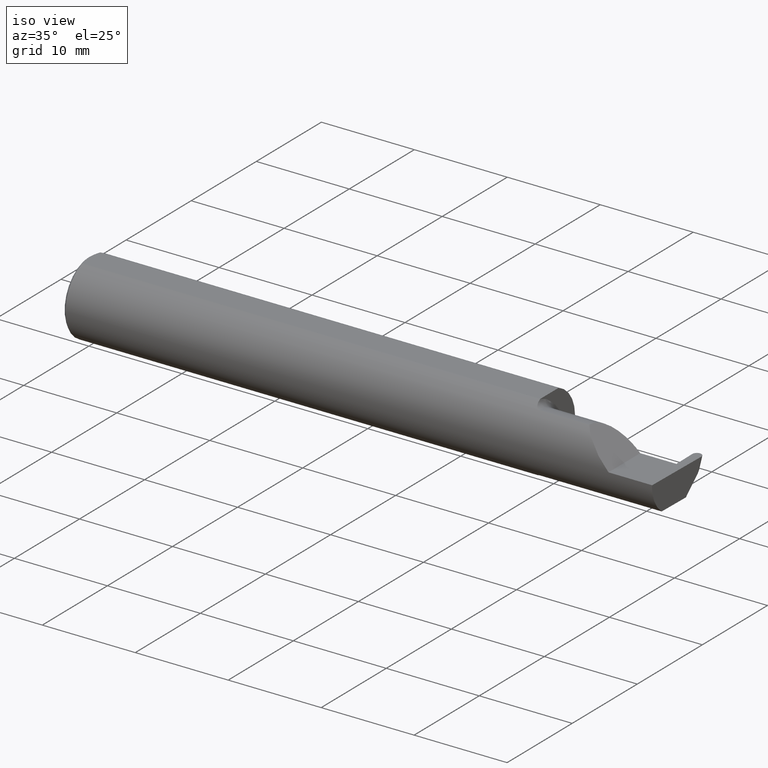
[diagram: clean part render]
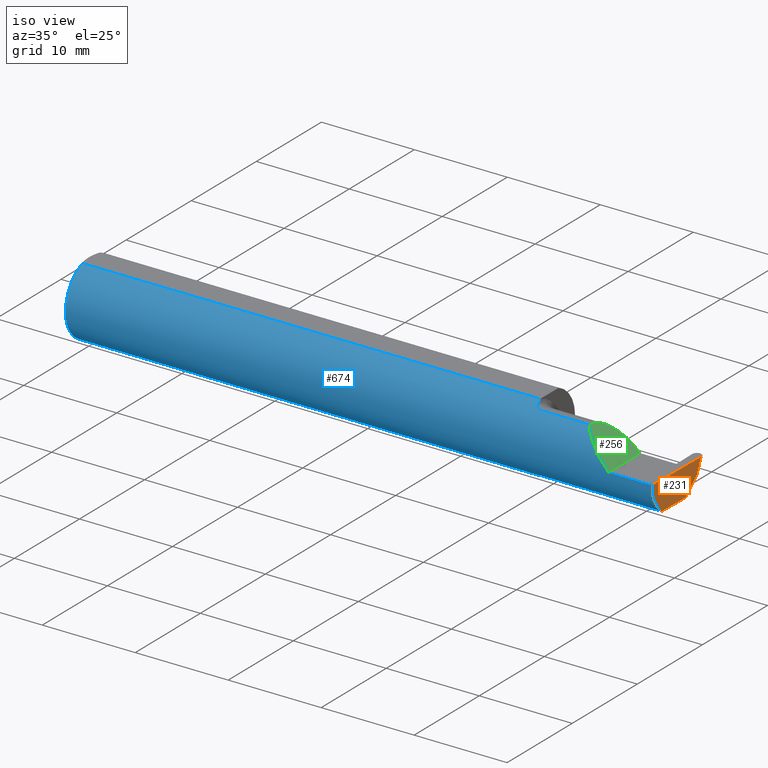
[diagram: same view with three faces highlighted in distinct colors, each labeled with its STEP entity id]
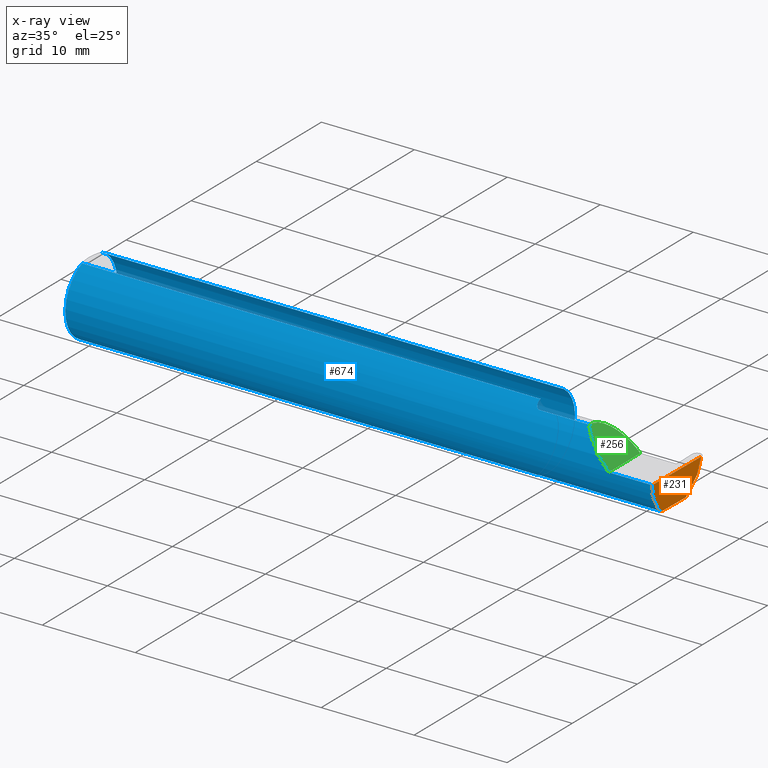
[diagram: x-ray of the same camera — body ghosted, the three highlighted faces saturated]
A machine part, iso view with three faces highlighted in distinct colors.
The next image is the same camera in x-ray (body ghosted, the three faces saturated) — at least one of them is partly hidden behind the body in this view.
Their STEP definitions:

[orange] entity #231 — the highlighted planar face has unit normal (-0.9992, 0.0174, 0.0349).
#2 = CARTESIAN_POINT ( 'NONE',  ( 2.499981158297549744, 0.1333832200032812054, 0.000000000000000000 ) ) ;
#18 = VECTOR ( 'NONE', #250, 39.37007874015748143 ) ;
#33 = DIRECTION ( 'NONE',  ( 0.03867711768363010783, 0.3253245514560481610, 0.9448111011136606230 ) ) ;
#41 = AXIS2_PLACEMENT_3D ( 'NONE', #562, #195, #354 ) ;
#42 = ORIENTED_EDGE ( 'NONE', *, *, #466, .F. ) ;
#49 = EDGE_CURVE ( 'NONE', #323, #434, #563, .T. ) ;
#61 = CARTESIAN_POINT ( 'NONE',  ( 2.491731938133923130, -0.08909999999999977660, -0.1250000000000000278 ) ) ;
#62 = ORIENTED_EDGE ( 'NONE', *, *, #202, .T. ) ;
#73 = CARTESIAN_POINT ( 'NONE',  ( 2.497431183685123735, 0.1119346375676058408, -0.06229120642041485051 ) ) ;
#94 = CARTESIAN_POINT ( 'NONE',  ( 2.493178846255211134, -0.1561000000000000165, -0.05008759057876781967 ) ) ;
#103 = CARTESIAN_POINT ( 'NONE',  ( 2.499997065210553426, 0.1342945264389270033, 0.000000000000000000 ) ) ;
#107 = LINE ( 'NONE', #697, #371 ) ;
#146 = VERTEX_POINT ( 'NONE', #73 ) ;
#151 = CARTESIAN_POINT ( 'NONE',  ( 2.491656083944432165, -0.09360841750841739084, -0.1249186702281520622 ) ) ;
#157 = CARTESIAN_POINT ( 'NONE',  ( 2.491656083944432165, -0.09360841750841739084, -0.1249186702281520622 ) ) ;
#158 = VERTEX_POINT ( 'NONE', #2 ) ;
#161 = VERTEX_POINT ( 'NONE', #346 ) ;
#163 = EDGE_LOOP ( 'NONE', ( #42, #62, #644, #421, #251, #595 ) ) ;
#165 = CARTESIAN_POINT ( 'NONE',  ( 2.491731938133923130, -0.08909999999999977660, -0.1250000000000000278 ) ) ;
#172 = CARTESIAN_POINT ( 'NONE',  ( 2.491680411974855680, -0.09210618219364760662, -0.1249728871357008442 ) ) ;
#185 = CARTESIAN_POINT ( 'NONE',  ( 2.491656083944432165, -0.09360841750841739084, -0.1249186702281520622 ) ) ;
#190 = EDGE_CURVE ( 'NONE', #161, #434, #505, .T. ) ;
#195 = DIRECTION ( 'NONE',  ( -0.9992386149554827179, 0.01744177490282277851, 0.03489949670250104552 ) ) ;
#198 = PLANE ( 'NONE',  #41 ) ;
#202 = EDGE_CURVE ( 'NONE', #146, #158, #406, .T. ) ;
#231 = ADVANCED_FACE ( 'NONE', ( #670 ), #198, .F. ) ;
#250 = DIRECTION ( 'NONE',  ( -0.01745240643727612520, -0.9998476951563912696, 0.000000000000000000 ) ) ;
#251 = ORIENTED_EDGE ( 'NONE', *, *, #49, .T. ) ;
#319 = EDGE_CURVE ( 'NONE', #158, #489, #478, .T. ) ;
#323 = VERTEX_POINT ( 'NONE', #151 ) ;
#346 = CARTESIAN_POINT ( 'NONE',  ( 2.494146424721983557, 0.04922584398802135747, -0.1250000000000000278 ) ) ;
#354 = DIRECTION ( 'NONE',  ( 0.03490480639812536257, 0.000000000000000000, 0.9993906415863165194 ) ) ;
#364 = CARTESIAN_POINT ( 'NONE',  ( 2.492005481760536156, -0.1336908980339253650, -0.09488266708345013956 ) ) ;
#368 = CARTESIAN_POINT ( 'NONE',  ( 2.494928209896765114, -0.1560999999999999888, 0.000000000000000000 ) ) ;
#371 = VECTOR ( 'NONE', #411, 39.37007874015748854 ) ;
#374 = EDGE_CURVE ( 'NONE', #323, #489, #612, .T. ) ;
#397 = VECTOR ( 'NONE', #692, 39.37007874015748143 ) ;
#406 = LINE ( 'NONE', #679, #590 ) ;
#411 = DIRECTION ( 'NONE',  ( -0.03701368837992422695, -0.7066222423871549863, -0.7066222423871629799 ) ) ;
#421 = ORIENTED_EDGE ( 'NONE', *, *, #374, .F. ) ;
#434 = VERTEX_POINT ( 'NONE', #165 ) ;
#451 = CARTESIAN_POINT ( 'NONE',  ( 2.491792233050964533, -0.08564570651617026131, -0.1250000000000000278 ) ) ;
#466 = EDGE_CURVE ( 'NONE', #146, #161, #107, .T. ) ;
#478 = LINE ( 'NONE', #103, #397 ) ;
#489 = VERTEX_POINT ( 'NONE', #647 ) ;
#505 = LINE ( 'NONE', #451, #18 ) ;
#562 = CARTESIAN_POINT ( 'NONE',  ( 2.499997065210553426, 0.1342945264389270033, 0.000000000000000000 ) ) ;
#563 =( BOUNDED_CURVE ( )  B_SPLINE_CURVE ( 3, ( #185, #172, #594, #61 ),
 .UNSPECIFIED., .F., .F. ) 
 B_SPLINE_CURVE_WITH_KNOTS ( ( 4, 4 ),
 ( 0.4273896528388664295, 0.4634648172053312254 ),
 .UNSPECIFIED. ) 
 CURVE ( )  GEOMETRIC_REPRESENTATION_ITEM ( )  RATIONAL_B_SPLINE_CURVE ( ( 1.000000000000000000, 0.9998915514833921492, 0.9998915514833921492, 1.000000000000000000 ) ) 
 REPRESENTATION_ITEM ( '' )  );
#590 = VECTOR ( 'NONE', #33, 39.37007874015748143 ) ;
#594 = CARTESIAN_POINT ( 'NONE',  ( 2.491705699447075428, -0.09060321336276816462, -0.1250000000000000833 ) ) ;
#595 = ORIENTED_EDGE ( 'NONE', *, *, #190, .F. ) ;
#612 =( BOUNDED_CURVE ( )  B_SPLINE_CURVE ( 3, ( #157, #364, #94, #368 ),
 .UNSPECIFIED., .F., .F. ) 
 B_SPLINE_CURVE_WITH_KNOTS ( ( 4, 4 ),
 ( 0.1796232990704036969, 1.107331509589568608 ),
 .UNSPECIFIED. ) 
 CURVE ( )  GEOMETRIC_REPRESENTATION_ITEM ( )  RATIONAL_B_SPLINE_CURVE ( ( 1.000000000000000000, 0.9295565493311497285, 0.9295565493311497285, 1.000000000000000000 ) ) 
 REPRESENTATION_ITEM ( '' )  );
#644 = ORIENTED_EDGE ( 'NONE', *, *, #319, .T. ) ;
#647 = CARTESIAN_POINT ( 'NONE',  ( 2.494928209896765114, -0.1560999999999999888, 0.000000000000000000 ) ) ;
#670 = FACE_OUTER_BOUND ( 'NONE', #163, .T. ) ;
#679 = CARTESIAN_POINT ( 'NONE',  ( 2.499992648711913734, 0.1334798692399048747, 0.0002806897643215264617 ) ) ;
#692 = DIRECTION ( 'NONE',  ( -0.01745240643727612520, -0.9998476951563912696, 0.000000000000000000 ) ) ;
#697 = CARTESIAN_POINT ( 'NONE',  ( 2.495646440191340965, 0.07786239281539021617, -0.09636345117263085680 ) ) ;

[blue] entity #674 — the highlighted cylindrical surface (partial cylindrical patch) has radius 3.9649 mm, axis along (-1, -0, -0).
#6 = DIRECTION ( 'NONE',  ( 1.000000000000000000, 3.338285537973413126E-17, 0.000000000000000000 ) ) ;
#7 = EDGE_LOOP ( 'NONE', ( #551, #415, #269, #609, #233, #183, #317, #541, #409, #169, #92, #469, #650 ) ) ;
#14 = EDGE_CURVE ( 'NONE', #554, #55, #150, .T. ) ;
#24 = DIRECTION ( 'NONE',  ( 1.000000000000000000, 0.000000000000000000, 0.000000000000000000 ) ) ;
#50 = DIRECTION ( 'NONE',  ( -1.000000000000000000, -0.000000000000000000, -0.000000000000000000 ) ) ;
#55 = VERTEX_POINT ( 'NONE', #277 ) ;
#70 = EDGE_CURVE ( 'NONE', #175, #699, #392, .T. ) ;
#72 = EDGE_CURVE ( 'NONE', #356, #175, #515, .T. ) ;
#78 = AXIS2_PLACEMENT_3D ( 'NONE', #391, #388, #443 ) ;
#79 = EDGE_CURVE ( 'NONE', #489, #402, #226, .T. ) ;
#83 = CARTESIAN_POINT ( 'NONE',  ( 1.949999999999999956, -0.05502817059483720852, 0.1460791239054557156 ) ) ;
#86 = VECTOR ( 'NONE', #50, 39.37007874015748143 ) ;
#90 = CARTESIAN_POINT ( 'NONE',  ( 0.000000000000000000, 0.05497272050753933964, 0.1460999999999998689 ) ) ;
#92 = ORIENTED_EDGE ( 'NONE', *, *, #321, .F. ) ;
#94 = CARTESIAN_POINT ( 'NONE',  ( 2.493178846255211134, -0.1561000000000000165, -0.05008759057876781967 ) ) ;
#95 = CARTESIAN_POINT ( 'NONE',  ( 1.974999999999999867, -0.09360841750841737696, -0.1249186702281520900 ) ) ;
#109 = VERTEX_POINT ( 'NONE', #337 ) ;
#111 = DIRECTION ( 'NONE',  ( -1.000000000000000000, -3.338285537973413126E-17, -0.000000000000000000 ) ) ;
#112 = CARTESIAN_POINT ( 'NONE',  ( 3.749399456654646757E-32, -0.1560999999999999333, 3.061616997868383634E-16 ) ) ;
#129 = CARTESIAN_POINT ( 'NONE',  ( 1.956968222952011338, -0.08292257577194368789, 0.1323215906886382742 ) ) ;
#131 = CARTESIAN_POINT ( 'NONE',  ( 0.000000000000000000, 0.000000000000000000, 0.000000000000000000 ) ) ;
#150 = B_SPLINE_CURVE_WITH_KNOTS ( 'NONE', 3,
 ( #95, #575, #311, #479, #687, #473, #477, #210, #690, #369 ),
 .UNSPECIFIED., .F., .F.,
 ( 4, 2, 2, 2, 4 ),
 ( 1.958690481381664333E-07, 0.0003511029445248158368, 0.0007020100200014934991, 0.001052917095478171161, 0.001403824170954848715 ),
 .UNSPECIFIED. ) ;
#151 = CARTESIAN_POINT ( 'NONE',  ( 2.491656083944432165, -0.09360841750841739084, -0.1249186702281520622 ) ) ;
#157 = CARTESIAN_POINT ( 'NONE',  ( 2.491656083944432165, -0.09360841750841739084, -0.1249186702281520622 ) ) ;
#162 = CIRCLE ( 'NONE', #424, 0.1560999999999999888 ) ;
#169 = ORIENTED_EDGE ( 'NONE', *, *, #693, .T. ) ;
#171 = CARTESIAN_POINT ( 'NONE',  ( 2.310000000000000053, -0.1560999999999999888, 2.326828918379970872E-17 ) ) ;
#175 = VERTEX_POINT ( 'NONE', #83 ) ;
#176 = CARTESIAN_POINT ( 'NONE',  ( 1.974999999999999867, -0.09360841750841737696, -0.1249186702281520900 ) ) ;
#183 = ORIENTED_EDGE ( 'NONE', *, *, #70, .F. ) ;
#184 = CARTESIAN_POINT ( 'NONE',  ( 1.949999999999999956, 0.000000000000000000, 0.000000000000000000 ) ) ;
#187 = VERTEX_POINT ( 'NONE', #288 ) ;
#193 = CYLINDRICAL_SURFACE ( 'NONE', #471, 0.1560999999999999888 ) ;
#194 = DIRECTION ( 'NONE',  ( -1.000000000000000000, -0.000000000000000000, -0.000000000000000000 ) ) ;
#196 = CIRCLE ( 'NONE', #675, 0.1560999999999999888 ) ;
#205 = VERTEX_POINT ( 'NONE', #294 ) ;
#210 = CARTESIAN_POINT ( 'NONE',  ( 1.950382848617946419, -0.06353102748571687330, -0.1426585117573466732 ) ) ;
#215 = CARTESIAN_POINT ( 'NONE',  ( 0.01000000000000013205, 0.000000000000000000, -0.1560999999999999888 ) ) ;
#222 = DIRECTION ( 'NONE',  ( 0.000000000000000000, 1.000000000000000000, 0.000000000000000000 ) ) ;
#223 = CARTESIAN_POINT ( 'NONE',  ( 1.965961110143898516, -0.09166971356555039807, 0.1263901893006928734 ) ) ;
#225 = CARTESIAN_POINT ( 'NONE',  ( 2.215117332916549220, -0.1336908980339253650, 0.09488266708345012568 ) ) ;
#226 = LINE ( 'NONE', #112, #526 ) ;
#228 = VECTOR ( 'NONE', #564, 39.37007874015748143 ) ;
#230 = LINE ( 'NONE', #556, #228 ) ;
#233 = ORIENTED_EDGE ( 'NONE', *, *, #642, .F. ) ;
#253 = VERTEX_POINT ( 'NONE', #568 ) ;
#269 = ORIENTED_EDGE ( 'NONE', *, *, #79, .T. ) ;
#276 = CARTESIAN_POINT ( 'NONE',  ( 2.218230820000000048, -0.09360841750841740472, -0.1249186702281520622 ) ) ;
#277 = CARTESIAN_POINT ( 'NONE',  ( 1.949999999999999956, -0.05502817059483720852, -0.1460791239054557156 ) ) ;
#282 = DIRECTION ( 'NONE',  ( 1.000000000000000000, 0.000000000000000000, 0.000000000000000000 ) ) ;
#283 = CARTESIAN_POINT ( 'NONE',  ( 1.949999999999999956, -0.05502817059483720852, 0.1460791239054557156 ) ) ;
#288 = CARTESIAN_POINT ( 'NONE',  ( 0.01000000000000013205, 0.05497272050753933964, 0.1460999999999998689 ) ) ;
#291 = VECTOR ( 'NONE', #111, 39.37007874015748143 ) ;
#294 = CARTESIAN_POINT ( 'NONE',  ( 2.185081329771846992, -0.09360841750841744635, 0.1249186702281520622 ) ) ;
#311 = CARTESIAN_POINT ( 'NONE',  ( 1.965963332554100829, -0.09167217634395835590, -0.1263885352504912074 ) ) ;
#313 = CARTESIAN_POINT ( 'NONE',  ( 2.310000000000000053, -0.1560999999999999888, 2.326828918379970872E-17 ) ) ;
#317 = ORIENTED_EDGE ( 'NONE', *, *, #72, .F. ) ;
#321 = EDGE_CURVE ( 'NONE', #109, #187, #528, .T. ) ;
#323 = VERTEX_POINT ( 'NONE', #151 ) ;
#325 = CARTESIAN_POINT ( 'NONE',  ( 2.259912409421231949, -0.1560999999999999333, 0.05008759057876778498 ) ) ;
#326 = AXIS2_PLACEMENT_3D ( 'NONE', #440, #6, #334 ) ;
#327 = CARTESIAN_POINT ( 'NONE',  ( 1.952022937423427251, -0.07166099912599845079, 0.1387519908707177951 ) ) ;
#333 = CARTESIAN_POINT ( 'NONE',  ( 0.000000000000000000, -0.05497272050753933964, 0.1460999999999998689 ) ) ;
#334 = DIRECTION ( 'NONE',  ( 0.000000000000000000, 1.000000000000000000, 0.000000000000000000 ) ) ;
#335 = VERTEX_POINT ( 'NONE', #215 ) ;
#337 = CARTESIAN_POINT ( 'NONE',  ( 1.949999999999999956, 0.05497272050753933964, 0.1460999999999998689 ) ) ;
#356 = VERTEX_POINT ( 'NONE', #682 ) ;
#357 = CARTESIAN_POINT ( 'NONE',  ( 0.01000000000000013205, 0.000000000000000000, 0.000000000000000000 ) ) ;
#364 = CARTESIAN_POINT ( 'NONE',  ( 2.492005481760536156, -0.1336908980339253650, -0.09488266708345013956 ) ) ;
#368 = CARTESIAN_POINT ( 'NONE',  ( 2.494928209896765114, -0.1560999999999999888, 0.000000000000000000 ) ) ;
#369 = CARTESIAN_POINT ( 'NONE',  ( 1.949999999999999956, -0.05502817059483720852, -0.1460791239054557156 ) ) ;
#374 = EDGE_CURVE ( 'NONE', #323, #489, #612, .T. ) ;
#385 = CIRCLE ( 'NONE', #78, 0.1560999999999999888 ) ;
#388 = DIRECTION ( 'NONE',  ( 1.000000000000000000, 0.000000000000000000, 0.000000000000000000 ) ) ;
#391 = CARTESIAN_POINT ( 'NONE',  ( 0.01000000000000013205, 0.000000000000000000, 0.000000000000000000 ) ) ;
#392 = B_SPLINE_CURVE_WITH_KNOTS ( 'NONE', 3,
 ( #283, #501, #605, #327, #487, #129, #396, #223, #492, #656 ),
 .UNSPECIFIED., .F., .F.,
 ( 4, 2, 2, 2, 4 ),
 ( 2.042507625474130879E-06, 0.0003500235523914536299, 0.0006980045971574332098, 0.001045985641923413223, 0.001393966686689393454 ),
 .UNSPECIFIED. ) ;
#396 = CARTESIAN_POINT ( 'NONE',  ( 1.959397142708819928, -0.08631844651567573135, 0.1301035823018546200 ) ) ;
#402 = VERTEX_POINT ( 'NONE', #313 ) ;
#409 = ORIENTED_EDGE ( 'NONE', *, *, #567, .T. ) ;
#415 = ORIENTED_EDGE ( 'NONE', *, *, #374, .T. ) ;
#424 = AXIS2_PLACEMENT_3D ( 'NONE', #357, #24, #672 ) ;
#433 = DIRECTION ( 'NONE',  ( -1.000000000000000000, -0.000000000000000000, -0.000000000000000000 ) ) ;
#440 = CARTESIAN_POINT ( 'NONE',  ( 1.949999999999999956, 0.000000000000000000, 0.000000000000000000 ) ) ;
#443 = DIRECTION ( 'NONE',  ( 0.000000000000000000, 0.000000000000000000, -1.000000000000000000 ) ) ;
#456 = FACE_OUTER_BOUND ( 'NONE', #7, .T. ) ;
#469 = ORIENTED_EDGE ( 'NONE', *, *, #619, .F. ) ;
#471 = AXIS2_PLACEMENT_3D ( 'NONE', #131, #194, #503 ) ;
#473 = CARTESIAN_POINT ( 'NONE',  ( 1.953298581922915833, -0.07564908586346466568, -0.1366096273808739270 ) ) ;
#474 = EDGE_CURVE ( 'NONE', #253, #356, #623, .T. ) ;
#477 = CARTESIAN_POINT ( 'NONE',  ( 1.952026367118634864, -0.07167964287766660780, -0.1387431844349195642 ) ) ;
#479 = CARTESIAN_POINT ( 'NONE',  ( 1.959390565699349773, -0.08631243322371083548, -0.1301077001157307234 ) ) ;
#483 = DIRECTION ( 'NONE',  ( 1.000000000000000000, 3.338285537973413126E-17, 0.000000000000000000 ) ) ;
#487 = CARTESIAN_POINT ( 'NONE',  ( 1.953286672421925330, -0.07562367844220796442, 0.1366243616413076456 ) ) ;
#489 = VERTEX_POINT ( 'NONE', #647 ) ;
#492 = CARTESIAN_POINT ( 'NONE',  ( 1.970302566751078510, -0.09360841750841732145, 0.1249186702281521177 ) ) ;
#495 = CARTESIAN_POINT ( 'NONE',  ( 2.185081329771846992, -0.09360841750841744635, 0.1249186702281520622 ) ) ;
#500 = LINE ( 'NONE', #276, #291 ) ;
#501 = CARTESIAN_POINT ( 'NONE',  ( 1.950000000000000400, -0.05936499800629317647, 0.1444454361322978220 ) ) ;
#503 = DIRECTION ( 'NONE',  ( 0.000000000000000000, 0.000000000000000000, 1.000000000000000000 ) ) ;
#504 = EDGE_CURVE ( 'NONE', #402, #205, #654, .T. ) ;
#515 = CIRCLE ( 'NONE', #326, 0.1560999999999999888 ) ;
#526 = VECTOR ( 'NONE', #433, 39.37007874015748143 ) ;
#528 = LINE ( 'NONE', #90, #86 ) ;
#541 = ORIENTED_EDGE ( 'NONE', *, *, #474, .F. ) ;
#549 = VECTOR ( 'NONE', #282, 39.37007874015748143 ) ;
#551 = ORIENTED_EDGE ( 'NONE', *, *, #586, .F. ) ;
#554 = VERTEX_POINT ( 'NONE', #176 ) ;
#556 = CARTESIAN_POINT ( 'NONE',  ( 2.218230820000000048, -0.09360841750841740472, 0.1249186702281520622 ) ) ;
#564 = DIRECTION ( 'NONE',  ( 1.000000000000000000, 3.338285537973413126E-17, 0.000000000000000000 ) ) ;
#567 = EDGE_CURVE ( 'NONE', #253, #335, #385, .T. ) ;
#568 = CARTESIAN_POINT ( 'NONE',  ( 0.01000000000000013205, -0.05497272050753933964, 0.1460999999999998689 ) ) ;
#575 = CARTESIAN_POINT ( 'NONE',  ( 1.970298065053172731, -0.09360841750841740472, -0.1249186702281521039 ) ) ;
#586 = EDGE_CURVE ( 'NONE', #323, #554, #500, .T. ) ;
#605 = CARTESIAN_POINT ( 'NONE',  ( 1.950388004276692122, -0.06355822688702683632, 0.1426455942582921244 ) ) ;
#607 = CARTESIAN_POINT ( 'NONE',  ( 1.974999999999999867, -0.09360841750841737696, 0.1249186702281520900 ) ) ;
#609 = ORIENTED_EDGE ( 'NONE', *, *, #504, .T. ) ;
#612 =( BOUNDED_CURVE ( )  B_SPLINE_CURVE ( 3, ( #157, #364, #94, #368 ),
 .UNSPECIFIED., .F., .F. ) 
 B_SPLINE_CURVE_WITH_KNOTS ( ( 4, 4 ),
 ( 0.1796232990704036969, 1.107331509589568608 ),
 .UNSPECIFIED. ) 
 CURVE ( )  GEOMETRIC_REPRESENTATION_ITEM ( )  RATIONAL_B_SPLINE_CURVE ( ( 1.000000000000000000, 0.9295565493311497285, 0.9295565493311497285, 1.000000000000000000 ) ) 
 REPRESENTATION_ITEM ( '' )  );
#619 = EDGE_CURVE ( 'NONE', #55, #109, #196, .T. ) ;
#623 = LINE ( 'NONE', #333, #549 ) ;
#642 = EDGE_CURVE ( 'NONE', #699, #205, #230, .T. ) ;
#647 = CARTESIAN_POINT ( 'NONE',  ( 2.494928209896765114, -0.1560999999999999888, 0.000000000000000000 ) ) ;
#650 = ORIENTED_EDGE ( 'NONE', *, *, #14, .F. ) ;
#654 =( BOUNDED_CURVE ( )  B_SPLINE_CURVE ( 3, ( #171, #325, #225, #495 ),
 .UNSPECIFIED., .F., .F. ) 
 B_SPLINE_CURVE_WITH_KNOTS ( ( 4, 4 ),
 ( 4.712388980384689674, 5.640097190903854418 ),
 .UNSPECIFIED. ) 
 CURVE ( )  GEOMETRIC_REPRESENTATION_ITEM ( )  RATIONAL_B_SPLINE_CURVE ( ( 1.000000000000000000, 0.9295565493311498395, 0.9295565493311498395, 1.000000000000000000 ) ) 
 REPRESENTATION_ITEM ( '' )  );
#656 = CARTESIAN_POINT ( 'NONE',  ( 1.974999999999999867, -0.09360841750841737696, 0.1249186702281520900 ) ) ;
#672 = DIRECTION ( 'NONE',  ( 0.000000000000000000, 0.000000000000000000, -1.000000000000000000 ) ) ;
#674 = ADVANCED_FACE ( 'NONE', ( #456 ), #193, .T. ) ;
#675 = AXIS2_PLACEMENT_3D ( 'NONE', #184, #483, #222 ) ;
#682 = CARTESIAN_POINT ( 'NONE',  ( 1.949999999999999956, -0.05497272050753934658, 0.1460999999999998689 ) ) ;
#687 = CARTESIAN_POINT ( 'NONE',  ( 1.956963077135974505, -0.08291057444783007935, -0.1323284214741863585 ) ) ;
#690 = CARTESIAN_POINT ( 'NONE',  ( 1.949999999999998401, -0.05933838711026689222, -0.1444554604868197034 ) ) ;
#693 = EDGE_CURVE ( 'NONE', #335, #187, #162, .T. ) ;
#699 = VERTEX_POINT ( 'NONE', #607 ) ;

[green] entity #256 — the highlighted planar face has unit normal (-0.7071, 0, -0.7071).
#10 = ORIENTED_EDGE ( 'NONE', *, *, #641, .T. ) ;
#28 = AXIS2_PLACEMENT_3D ( 'NONE', #557, #141, #620 ) ;
#140 = VECTOR ( 'NONE', #603, 39.37007874015748143 ) ;
#141 = DIRECTION ( 'NONE',  ( -0.7071067811865436870, 0.000000000000000000, -0.7071067811865513475 ) ) ;
#155 = ORIENTED_EDGE ( 'NONE', *, *, #504, .F. ) ;
#171 = CARTESIAN_POINT ( 'NONE',  ( 2.310000000000000053, -0.1560999999999999888, 2.326828918379970872E-17 ) ) ;
#205 = VERTEX_POINT ( 'NONE', #294 ) ;
#225 = CARTESIAN_POINT ( 'NONE',  ( 2.215117332916549220, -0.1336908980339253650, 0.09488266708345012568 ) ) ;
#256 = ADVANCED_FACE ( 'NONE', ( #299 ), #408, .F. ) ;
#279 = CARTESIAN_POINT ( 'NONE',  ( 2.310000000000000053, -0.2500000000000000555, 2.326828918379970872E-17 ) ) ;
#294 = CARTESIAN_POINT ( 'NONE',  ( 2.185081329771846992, -0.09360841750841744635, 0.1249186702281520622 ) ) ;
#299 = FACE_OUTER_BOUND ( 'NONE', #606, .T. ) ;
#313 = CARTESIAN_POINT ( 'NONE',  ( 2.310000000000000053, -0.1560999999999999888, 2.326828918379970872E-17 ) ) ;
#325 = CARTESIAN_POINT ( 'NONE',  ( 2.259912409421231949, -0.1560999999999999333, 0.05008759057876778498 ) ) ;
#395 = CARTESIAN_POINT ( 'NONE',  ( 2.310000000000000053, 0.03590000000000001523, 6.735557395310446214E-17 ) ) ;
#402 = VERTEX_POINT ( 'NONE', #313 ) ;
#408 = PLANE ( 'NONE',  #28 ) ;
#419 = CARTESIAN_POINT ( 'NONE',  ( 2.185081329771846992, -0.09360841750841744635, 0.1249186702281520622 ) ) ;
#420 = EDGE_CURVE ( 'NONE', #205, #640, #533, .T. ) ;
#495 = CARTESIAN_POINT ( 'NONE',  ( 2.185081329771846992, -0.09360841750841744635, 0.1249186702281520622 ) ) ;
#504 = EDGE_CURVE ( 'NONE', #402, #205, #654, .T. ) ;
#533 =( BOUNDED_CURVE ( )  B_SPLINE_CURVE ( 3, ( #419, #570, #536, #635 ),
 .UNSPECIFIED., .F., .F. ) 
 B_SPLINE_CURVE_WITH_KNOTS ( ( 4, 4 ),
 ( 6.247110142813123268, 7.853981633974482790 ),
 .UNSPECIFIED. ) 
 CURVE ( )  GEOMETRIC_REPRESENTATION_ITEM ( )  RATIONAL_B_SPLINE_CURVE ( ( 1.000000000000000000, 0.7961586327312956124, 0.7961586327312956124, 1.000000000000000000 ) ) 
 REPRESENTATION_ITEM ( '' )  );
#536 = CARTESIAN_POINT ( 'NONE',  ( 2.234664766370900058, 0.03589999999999999442, 0.07533523362909992638 ) ) ;
#544 = LINE ( 'NONE', #279, #140 ) ;
#557 = CARTESIAN_POINT ( 'NONE',  ( 2.310000000000000053, -0.2500000000000000555, 2.326828918379970872E-17 ) ) ;
#570 = CARTESIAN_POINT ( 'NONE',  ( 2.182364188281493700, -0.01832219985822300390, 0.1276358117185053542 ) ) ;
#603 = DIRECTION ( 'NONE',  ( -0.000000000000000000, 1.000000000000000000, -0.000000000000000000 ) ) ;
#606 = EDGE_LOOP ( 'NONE', ( #625, #155, #10 ) ) ;
#620 = DIRECTION ( 'NONE',  ( -0.7071067811865513475, 0.000000000000000000, 0.7071067811865436870 ) ) ;
#625 = ORIENTED_EDGE ( 'NONE', *, *, #420, .F. ) ;
#635 = CARTESIAN_POINT ( 'NONE',  ( 2.310000000000000053, 0.03590000000000001523, 6.735557395310446214E-17 ) ) ;
#640 = VERTEX_POINT ( 'NONE', #395 ) ;
#641 = EDGE_CURVE ( 'NONE', #402, #640, #544, .T. ) ;
#654 =( BOUNDED_CURVE ( )  B_SPLINE_CURVE ( 3, ( #171, #325, #225, #495 ),
 .UNSPECIFIED., .F., .F. ) 
 B_SPLINE_CURVE_WITH_KNOTS ( ( 4, 4 ),
 ( 4.712388980384689674, 5.640097190903854418 ),
 .UNSPECIFIED. ) 
 CURVE ( )  GEOMETRIC_REPRESENTATION_ITEM ( )  RATIONAL_B_SPLINE_CURVE ( ( 1.000000000000000000, 0.9295565493311498395, 0.9295565493311498395, 1.000000000000000000 ) ) 
 REPRESENTATION_ITEM ( '' )  );